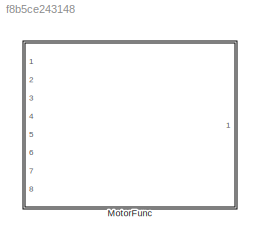
MODEL slx_f8b5ce243148
KIND library
CONFIG AbsTol = auto
CONFIG FixedStep = auto
CONFIG MaxStep = auto
CONFIG MinStep = auto
CONFIG RelTol = 1e-3
CONFIG SampleTimeConstraint = Unconstrained
CONFIG Solver = ode45
CONFIG SolverMode = Auto
CONFIG SolverName = ode45
CONFIG StartTime = 0.0
CONFIG StopTime = 10.0
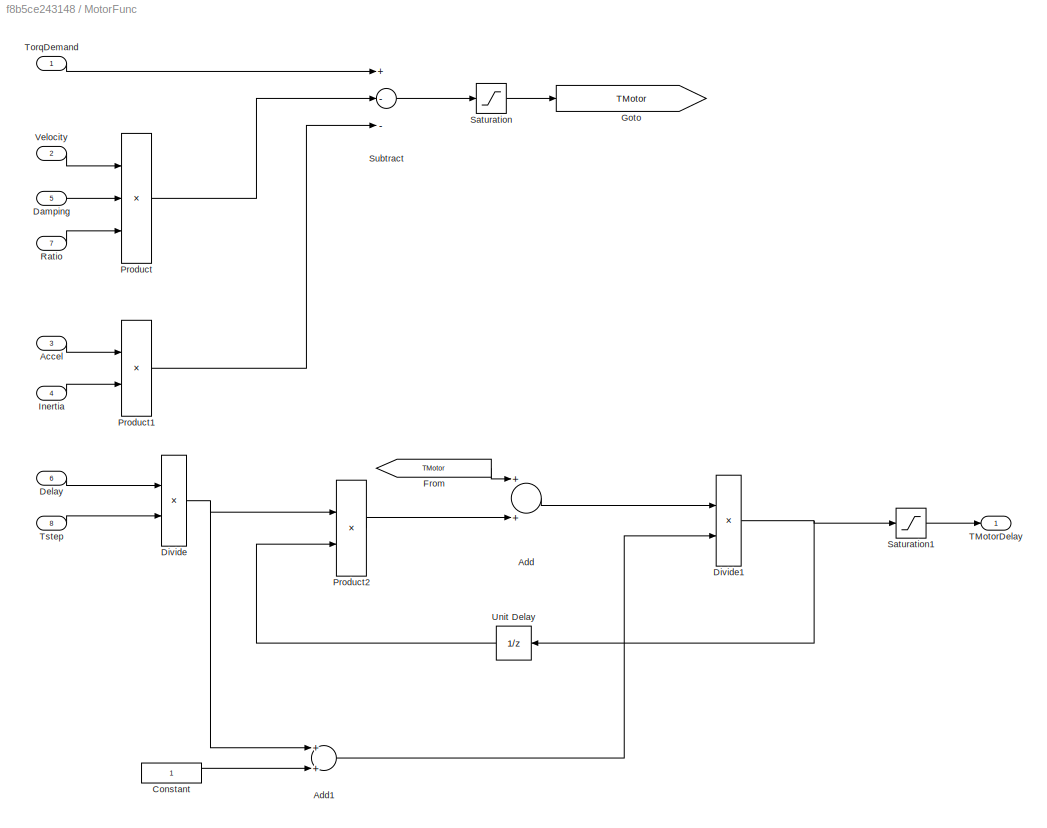
BLOCK [SubSystem] MotorFunc
  Ports = [8, 1]
  RequestExecContextInheritance = off
  Variant = off
BLOCK [Inport] MotorFunc/Accel
  IconDisplay = Port number
  Port = 3
BLOCK [Sum] MotorFunc/Add
  InputSameDT = off
  OutDataTypeStr = Inherit: Inherit via internal rule
  Ports = [2, 1]
  SaturateOnIntegerOverflow = off
BLOCK [Sum] MotorFunc/Add1
  InputSameDT = off
  OutDataTypeStr = Inherit: Inherit via internal rule
  Ports = [2, 1]
  SaturateOnIntegerOverflow = off
BLOCK [Constant] MotorFunc/Constant
BLOCK [Inport] MotorFunc/Damping
  IconDisplay = Port number
  Port = 5
BLOCK [Inport] MotorFunc/Delay
  IconDisplay = Port number
  Port = 6
BLOCK [Product] MotorFunc/Divide
  InputSameDT = off
  Inputs = */
  OutDataTypeStr = Inherit: Inherit via internal rule
  Ports = [2, 1]
  RndMeth = Floor
  SaturateOnIntegerOverflow = off
BLOCK [Product] MotorFunc/Divide1
  InputSameDT = off
  Inputs = */
  OutDataTypeStr = Inherit: Inherit via internal rule
  Ports = [2, 1]
  RndMeth = Floor
  SaturateOnIntegerOverflow = off
BLOCK [From] MotorFunc/From
  GotoTag = TMotor
BLOCK [Goto] MotorFunc/Goto
  GotoTag = TMotor
BLOCK [Inport] MotorFunc/Inertia
  IconDisplay = Port number
  Port = 4
BLOCK [Product] MotorFunc/Product
  InputSameDT = off
  Inputs = 3
  OutDataTypeStr = Inherit: Inherit via internal rule
  Ports = [3, 1]
  RndMeth = Floor
  SaturateOnIntegerOverflow = off
BLOCK [Product] MotorFunc/Product1
  InputSameDT = off
  OutDataTypeStr = Inherit: Inherit via internal rule
  Ports = [2, 1]
  RndMeth = Floor
  SaturateOnIntegerOverflow = off
BLOCK [Product] MotorFunc/Product2
  InputSameDT = off
  OutDataTypeStr = Inherit: Inherit via internal rule
  Ports = [2, 1]
  RndMeth = Floor
  SaturateOnIntegerOverflow = off
BLOCK [Inport] MotorFunc/Ratio
  IconDisplay = Port number
  Port = 7
BLOCK [Saturate] MotorFunc/Saturation
  InputPortMap = u0
  LowerLimit = 0
  Ports = [1, 1]
  UpperLimit = 300
BLOCK [Saturate] MotorFunc/Saturation1
  InputPortMap = u0
  LowerLimit = 0
  Ports = [1, 1]
  UpperLimit = 300
BLOCK [Sum] MotorFunc/Subtract
  InputSameDT = off
  Inputs = +--
  OutDataTypeStr = Inherit: Inherit via internal rule
  Ports = [3, 1]
  SaturateOnIntegerOverflow = off
BLOCK [Outport] MotorFunc/TMotorDelay
  IconDisplay = Port number
BLOCK [Inport] MotorFunc/TorqDemand
  IconDisplay = Port number
BLOCK [Inport] MotorFunc/Tstep
  IconDisplay = Port number
  Port = 8
BLOCK [UnitDelay] MotorFunc/Unit Delay
  InputProcessing = Elements as channels (sample based)
  SampleTime = -1
BLOCK [Inport] MotorFunc/Velocity
  IconDisplay = Port number
  Port = 2
LINE MotorFunc/Accel:1 -> MotorFunc/Product1:1
LINE MotorFunc/Add1:1 -> MotorFunc/Divide1:2
LINE MotorFunc/Add:1 -> MotorFunc/Divide1:1
LINE MotorFunc/Constant:1 -> MotorFunc/Add1:2
LINE MotorFunc/Damping:1 -> MotorFunc/Product:2
LINE MotorFunc/Delay:1 -> MotorFunc/Divide:1
NET MotorFunc/Divide1:1 -> MotorFunc/Saturation1:1, MotorFunc/Unit Delay:1
NET MotorFunc/Divide:1 -> MotorFunc/Add1:1, MotorFunc/Product2:1
LINE MotorFunc/From:1 -> MotorFunc/Add:1
LINE MotorFunc/Inertia:1 -> MotorFunc/Product1:2
LINE MotorFunc/Product1:1 -> MotorFunc/Subtract:3
LINE MotorFunc/Product2:1 -> MotorFunc/Add:2
LINE MotorFunc/Product:1 -> MotorFunc/Subtract:2
LINE MotorFunc/Ratio:1 -> MotorFunc/Product:3
LINE MotorFunc/Saturation1:1 -> MotorFunc/TMotorDelay:1
LINE MotorFunc/Saturation:1 -> MotorFunc/Goto:1
LINE MotorFunc/Subtract:1 -> MotorFunc/Saturation:1
LINE MotorFunc/TorqDemand:1 -> MotorFunc/Subtract:1
LINE MotorFunc/Tstep:1 -> MotorFunc/Divide:2
LINE MotorFunc/Unit Delay:1 -> MotorFunc/Product2:2
LINE MotorFunc/Velocity:1 -> MotorFunc/Product:1
note: NET lines group one-source signal fan-out (src -> all destinations, sorted); 1:1 wires keep LINE
